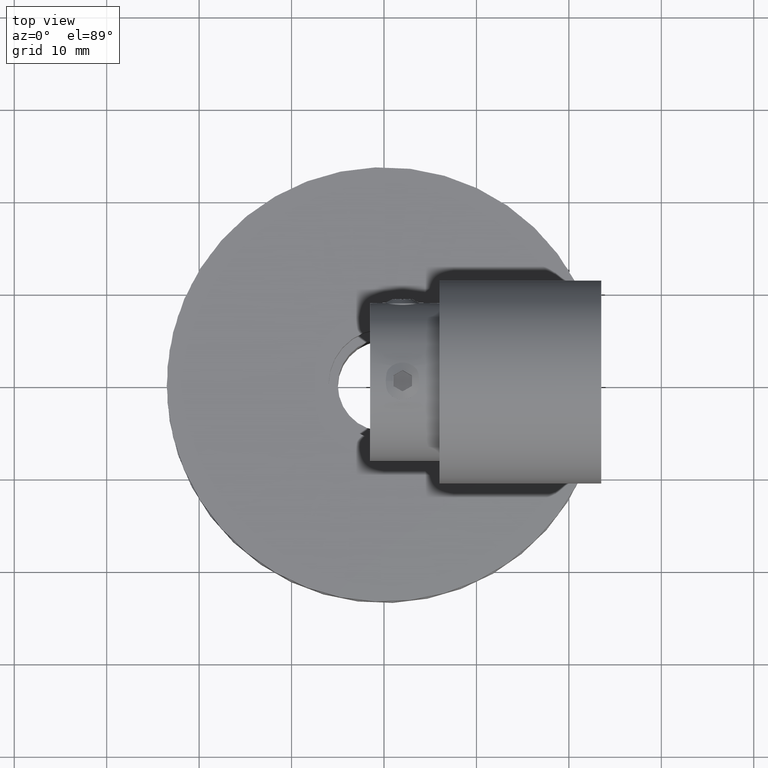
[diagram: clean part render]
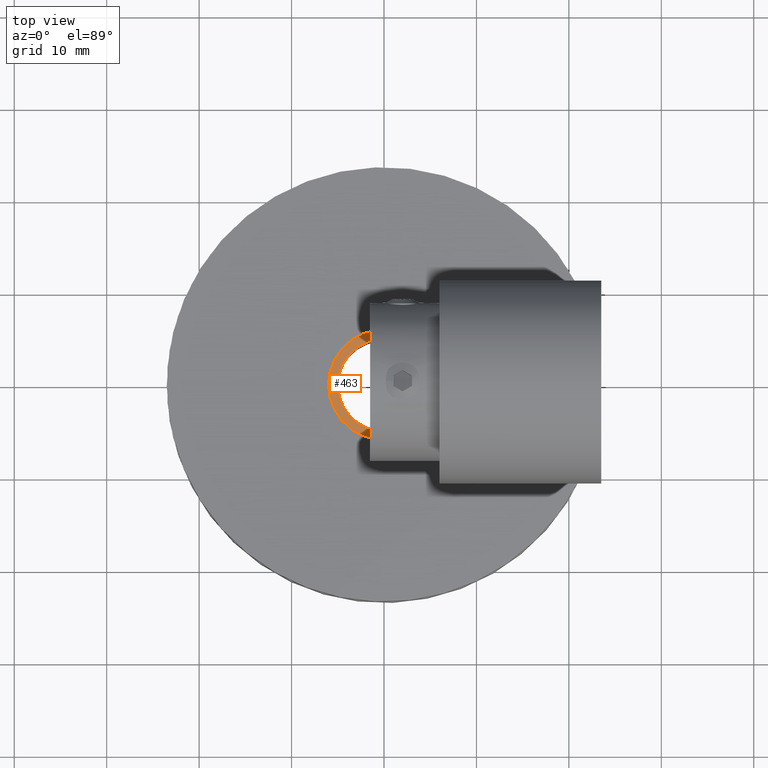
[diagram: same view with one face highlighted and labeled with its STEP entity id]
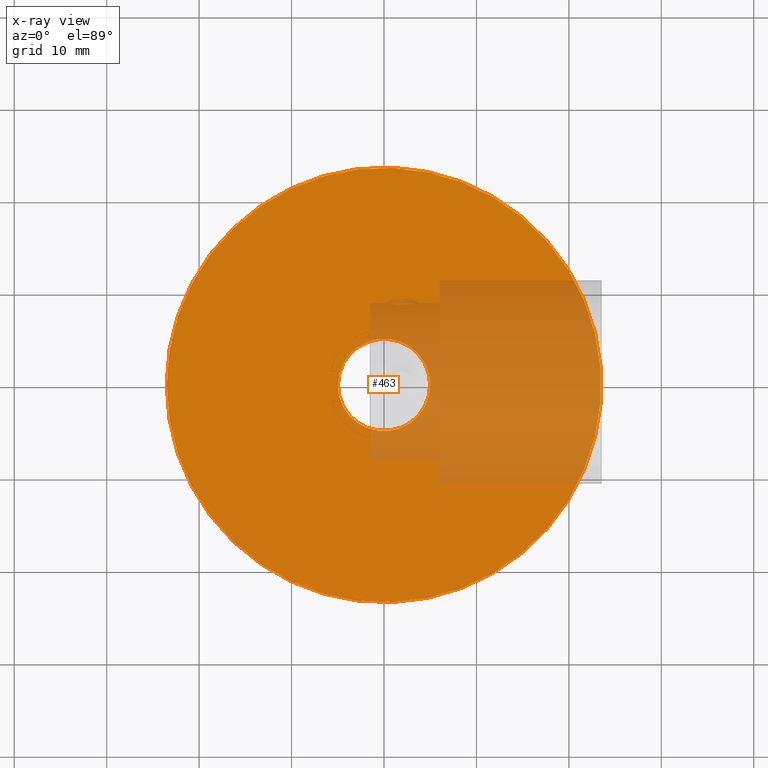
[diagram: x-ray of the same camera — body ghosted, the highlighted face saturated]
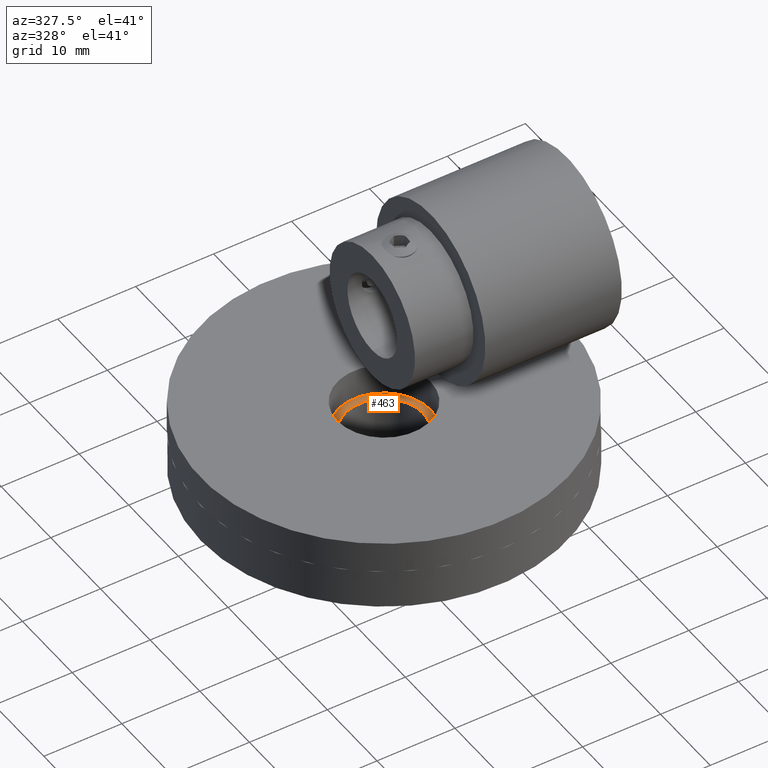
[diagram: same view with one face highlighted and labeled with its STEP entity id]
A machine part, top view. The second image highlights one B-rep face of the part: STEP entity #463.
The next image is the same camera in x-ray: the body ghosted, the highlighted face saturated — about 27% of this face is hidden behind the body in this view.
A second angle (auxiliary view) of the same face is appended — the face is thin or edge-on in the first view.
In plain terms, the highlighted planar face has unit normal (0, 0, 1).
Its self-contained STEP definition (entity closure, byte-faithful):
#463 = ADVANCED_FACE( '', ( #568, #569 ), #570, .T. );
#568 = FACE_BOUND( '', #752, .T. );
#569 = FACE_OUTER_BOUND( '', #753, .T. );
#570 = PLANE( '', #754 );
#752 = EDGE_LOOP( '', ( #956 ) );
#753 = EDGE_LOOP( '', ( #957 ) );
#754 = AXIS2_PLACEMENT_3D( '', #958, #959, #960 );
#956 = ORIENTED_EDGE( '', *, *, #1342, .T. );
#957 = ORIENTED_EDGE( '', *, *, #1339, .T. );
#958 = CARTESIAN_POINT( '', ( 0.000000000000000, 0.000000000000000, 23.0000000000000 ) );
#959 = DIRECTION( '', ( 0.000000000000000, 0.000000000000000, 1.00000000000000 ) );
#960 = DIRECTION( '', ( -1.00000000000000, 1.22460635382238E-016, 0.000000000000000 ) );
#1339 = EDGE_CURVE( '', #1460, #1460, #1461, .T. );
#1342 = EDGE_CURVE( '', #1466, #1466, #1467, .T. );
#1460 = VERTEX_POINT( '', #1660 );
#1461 = CIRCLE( '', #1661, 23.5000000000000 );
#1466 = VERTEX_POINT( '', #1776 );
#1467 = CIRCLE( '', #1777, 5.00000000000000 );
#1660 = CARTESIAN_POINT( '', ( -23.5000000000000, 2.87782493148259E-015, 23.0000000000000 ) );
#1661 = AXIS2_PLACEMENT_3D( '', #2461, #2462, #2463 );
#1776 = CARTESIAN_POINT( '', ( -5.00000000000000, 6.12303176911189E-016, 23.0000000000000 ) );
#1777 = AXIS2_PLACEMENT_3D( '', #2464, #2465, #2466 );
#2461 = CARTESIAN_POINT( '', ( 0.000000000000000, 0.000000000000000, 23.0000000000000 ) );
#2462 = DIRECTION( '', ( 0.000000000000000, 0.000000000000000, 1.00000000000000 ) );
#2463 = DIRECTION( '', ( -1.00000000000000, 1.22460635382238E-016, 0.000000000000000 ) );
#2464 = CARTESIAN_POINT( '', ( 0.000000000000000, 0.000000000000000, 23.0000000000000 ) );
#2465 = DIRECTION( '', ( 0.000000000000000, 0.000000000000000, -1.00000000000000 ) );
#2466 = DIRECTION( '', ( -1.00000000000000, 1.22460635382238E-016, 0.000000000000000 ) );